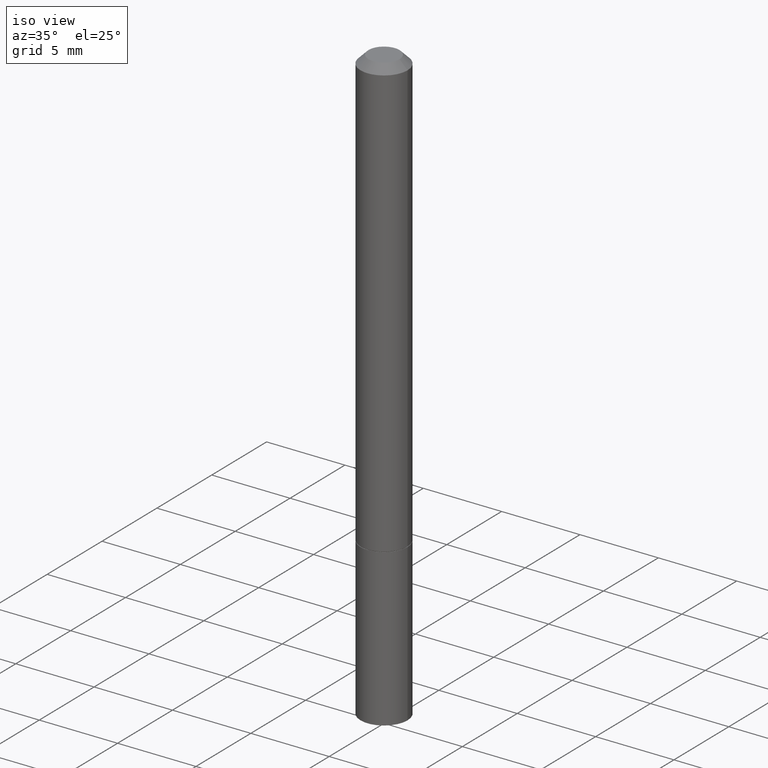
[diagram: clean part render]
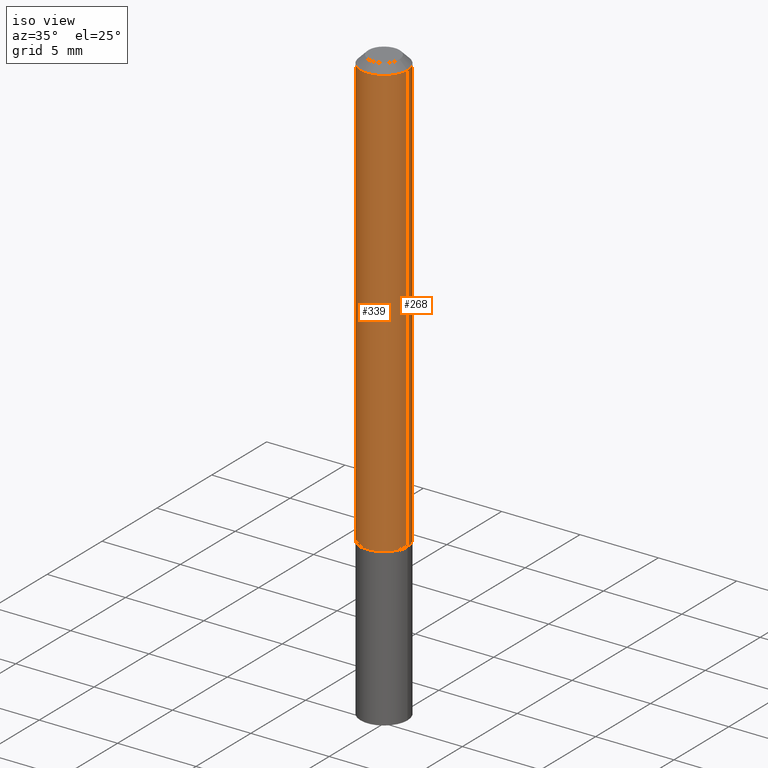
[diagram: same view with one multi-face feature highlighted, each face labeled with its STEP entity id]
A machine part, iso view. The highlighted faces form ONE feature: a constant-radius fillet chain: 2 tangent blend faces with common blend radius 1.4999 mm. The faces share edges in the B-rep.
Their STEP definitions:
[1] entity #339 (Cylinder):
#17 = ORIENTED_EDGE ( 'NONE', *, *, #111, .F. ) ;
#22 = ORIENTED_EDGE ( 'NONE', *, *, #295, .T. ) ;
#23 = AXIS2_PLACEMENT_3D ( 'NONE', #189, #160, #63 ) ;
#27 = CARTESIAN_POINT ( 'NONE',  ( -0.05904999999999988036, 3.425143193405100442E-16, -0.02000000000000006287 ) ) ;
#36 = VERTEX_POINT ( 'NONE', #83 ) ;
#40 = VECTOR ( 'NONE', #317, 39.37007874015748143 ) ;
#42 = DIRECTION ( 'NONE',  ( -2.445468806185136597E-29, 3.491481338843145583E-15, 1.000000000000000000 ) ) ;
#60 = FACE_OUTER_BOUND ( 'NONE', #149, .T. ) ;
#63 = DIRECTION ( 'NONE',  ( 1.000000000000000000, -6.982962677686266711E-15, 4.876176775795935232E-29 ) ) ;
#64 = VERTEX_POINT ( 'NONE', #364 ) ;
#83 = CARTESIAN_POINT ( 'NONE',  ( 0.05904999999999988036, -4.749420335452712790E-16, -0.02000000000000006287 ) ) ;
#88 = EDGE_CURVE ( 'NONE', #64, #112, #119, .T. ) ;
#89 = CARTESIAN_POINT ( 'NONE',  ( -0.05904999999999994975, 4.195754854663388027E-16, -2.904631170795519440E-30 ) ) ;
#99 = VECTOR ( 'NONE', #209, 39.37007874015748143 ) ;
#106 = ORIENTED_EDGE ( 'NONE', *, *, #88, .F. ) ;
#111 = EDGE_CURVE ( 'NONE', #112, #36, #322, .T. ) ;
#112 = VERTEX_POINT ( 'NONE', #27 ) ;
#119 = LINE ( 'NONE', #89, #40 ) ;
#149 = EDGE_LOOP ( 'NONE', ( #106, #22, #326, #17 ) ) ;
#155 = CARTESIAN_POINT ( 'NONE',  ( 0.05904999999999994975, -4.123439461173736876E-16, 2.879382386107497418E-30 ) ) ;
#159 = AXIS2_PLACEMENT_3D ( 'NONE', #346, #210, #341 ) ;
#160 = DIRECTION ( 'NONE',  ( -2.445468806185136597E-29, 3.491481338843145583E-15, 1.000000000000000000 ) ) ;
#168 = AXIS2_PLACEMENT_3D ( 'NONE', #208, #42, #315 ) ;
#189 = CARTESIAN_POINT ( 'NONE',  ( 0.000000000000000000, 0.000000000000000000, 0.000000000000000000 ) ) ;
#208 = CARTESIAN_POINT ( 'NONE',  ( 2.693439343132309428E-29, -3.845517546601840311E-15, -1.101399999999999935 ) ) ;
#209 = DIRECTION ( 'NONE',  ( -2.445468806185136877E-29, 3.491481338843145188E-15, 1.000000000000000000 ) ) ;
#210 = DIRECTION ( 'NONE',  ( -2.445468806185136597E-29, 3.491481338843145583E-15, 1.000000000000000000 ) ) ;
#222 = CIRCLE ( 'NONE', #168, 0.05905000000000001914 ) ;
#240 = CARTESIAN_POINT ( 'NONE',  ( 0.05905000000000001914, -4.257861492719214443E-15, -1.101399999999999935 ) ) ;
#267 = LINE ( 'NONE', #155, #99 ) ;
#280 = VERTEX_POINT ( 'NONE', #240 ) ;
#295 = EDGE_CURVE ( 'NONE', #64, #280, #222, .T. ) ;
#308 = EDGE_CURVE ( 'NONE', #280, #36, #267, .T. ) ;
#315 = DIRECTION ( 'NONE',  ( 1.000000000000000000, -6.982962677686270655E-15, 0.000000000000000000 ) ) ;
#317 = DIRECTION ( 'NONE',  ( -2.445468806185136877E-29, 3.491481338843145188E-15, 1.000000000000000000 ) ) ;
#320 = CYLINDRICAL_SURFACE ( 'NONE', #23, 0.05904999999999994975 ) ;
#322 = CIRCLE ( 'NONE', #159, 0.05904999999999988036 ) ;
#326 = ORIENTED_EDGE ( 'NONE', *, *, #308, .T. ) ;
#339 = ADVANCED_FACE ( 'NONE', ( #60 ), #320, .T. ) ;
#341 = DIRECTION ( 'NONE',  ( 1.000000000000000000, -6.982962677686266711E-15, 0.000000000000000000 ) ) ;
#346 = CARTESIAN_POINT ( 'NONE',  ( 4.890937612370288923E-31, -6.982962677686312563E-17, -0.02000000000000006287 ) ) ;
#364 = CARTESIAN_POINT ( 'NONE',  ( -0.05905000000000001914, -1.538098101223010537E-15, -1.101399999999999935 ) ) ;
[2] entity #268 (Cylinder):
#27 = CARTESIAN_POINT ( 'NONE',  ( -0.05904999999999988036, 3.425143193405100442E-16, -0.02000000000000006287 ) ) ;
#36 = VERTEX_POINT ( 'NONE', #83 ) ;
#38 = DIRECTION ( 'NONE',  ( -2.445468806185136597E-29, 3.491481338843145583E-15, 1.000000000000000000 ) ) ;
#40 = VECTOR ( 'NONE', #317, 39.37007874015748143 ) ;
#47 = AXIS2_PLACEMENT_3D ( 'NONE', #49, #285, #286 ) ;
#49 = CARTESIAN_POINT ( 'NONE',  ( 0.000000000000000000, 0.000000000000000000, 0.000000000000000000 ) ) ;
#58 = CIRCLE ( 'NONE', #134, 0.05904999999999988036 ) ;
#64 = VERTEX_POINT ( 'NONE', #364 ) ;
#71 = DIRECTION ( 'NONE',  ( 1.000000000000000000, -6.982962677686266711E-15, 0.000000000000000000 ) ) ;
#83 = CARTESIAN_POINT ( 'NONE',  ( 0.05904999999999988036, -4.749420335452712790E-16, -0.02000000000000006287 ) ) ;
#88 = EDGE_CURVE ( 'NONE', #64, #112, #119, .T. ) ;
#89 = CARTESIAN_POINT ( 'NONE',  ( -0.05904999999999994975, 4.195754854663388027E-16, -2.904631170795519440E-30 ) ) ;
#99 = VECTOR ( 'NONE', #209, 39.37007874015748143 ) ;
#110 = AXIS2_PLACEMENT_3D ( 'NONE', #256, #38, #354 ) ;
#112 = VERTEX_POINT ( 'NONE', #27 ) ;
#119 = LINE ( 'NONE', #89, #40 ) ;
#134 = AXIS2_PLACEMENT_3D ( 'NONE', #355, #327, #71 ) ;
#142 = ORIENTED_EDGE ( 'NONE', *, *, #217, .F. ) ;
#144 = CYLINDRICAL_SURFACE ( 'NONE', #47, 0.05904999999999994975 ) ;
#155 = CARTESIAN_POINT ( 'NONE',  ( 0.05904999999999994975, -4.123439461173736876E-16, 2.879382386107497418E-30 ) ) ;
#190 = EDGE_CURVE ( 'NONE', #280, #64, #347, .T. ) ;
#209 = DIRECTION ( 'NONE',  ( -2.445468806185136877E-29, 3.491481338843145188E-15, 1.000000000000000000 ) ) ;
#217 = EDGE_CURVE ( 'NONE', #36, #112, #58, .T. ) ;
#240 = CARTESIAN_POINT ( 'NONE',  ( 0.05905000000000001914, -4.257861492719214443E-15, -1.101399999999999935 ) ) ;
#256 = CARTESIAN_POINT ( 'NONE',  ( 2.693439343132309428E-29, -3.845517546601840311E-15, -1.101399999999999935 ) ) ;
#259 = EDGE_LOOP ( 'NONE', ( #297, #278, #142, #312 ) ) ;
#267 = LINE ( 'NONE', #155, #99 ) ;
#268 = ADVANCED_FACE ( 'NONE', ( #332 ), #144, .T. ) ;
#278 = ORIENTED_EDGE ( 'NONE', *, *, #88, .T. ) ;
#280 = VERTEX_POINT ( 'NONE', #240 ) ;
#285 = DIRECTION ( 'NONE',  ( -2.445468806185136597E-29, 3.491481338843145583E-15, 1.000000000000000000 ) ) ;
#286 = DIRECTION ( 'NONE',  ( 1.000000000000000000, -6.982962677686266711E-15, 4.876176775795935232E-29 ) ) ;
#297 = ORIENTED_EDGE ( 'NONE', *, *, #190, .T. ) ;
#308 = EDGE_CURVE ( 'NONE', #280, #36, #267, .T. ) ;
#312 = ORIENTED_EDGE ( 'NONE', *, *, #308, .F. ) ;
#317 = DIRECTION ( 'NONE',  ( -2.445468806185136877E-29, 3.491481338843145188E-15, 1.000000000000000000 ) ) ;
#327 = DIRECTION ( 'NONE',  ( -2.445468806185136597E-29, 3.491481338843145583E-15, 1.000000000000000000 ) ) ;
#332 = FACE_OUTER_BOUND ( 'NONE', #259, .T. ) ;
#347 = CIRCLE ( 'NONE', #110, 0.05905000000000001914 ) ;
#354 = DIRECTION ( 'NONE',  ( 1.000000000000000000, -6.982962677686270655E-15, 0.000000000000000000 ) ) ;
#355 = CARTESIAN_POINT ( 'NONE',  ( 4.890937612370288923E-31, -6.982962677686312563E-17, -0.02000000000000006287 ) ) ;
#364 = CARTESIAN_POINT ( 'NONE',  ( -0.05905000000000001914, -1.538098101223010537E-15, -1.101399999999999935 ) ) ;